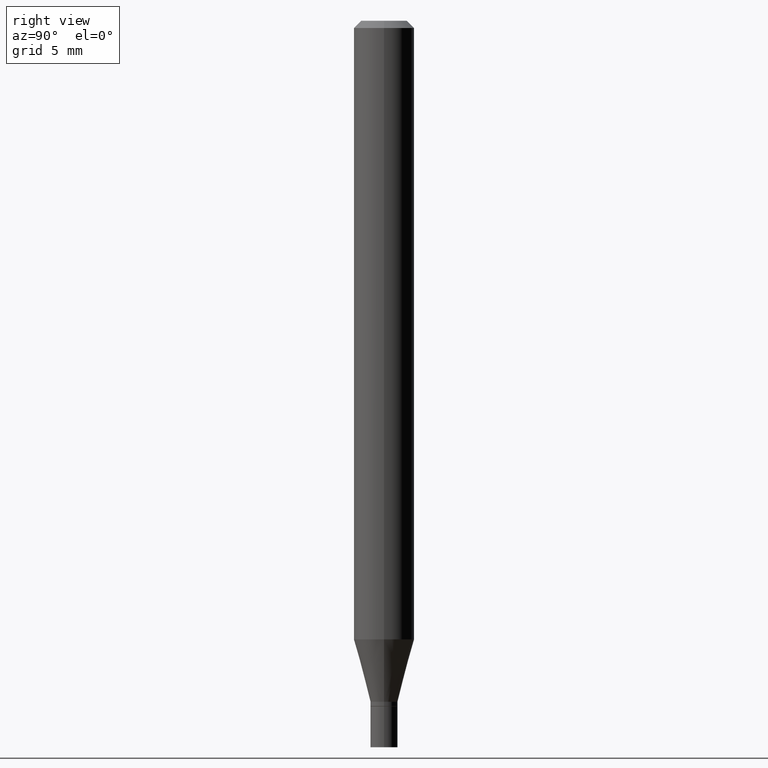
[diagram: clean part render]
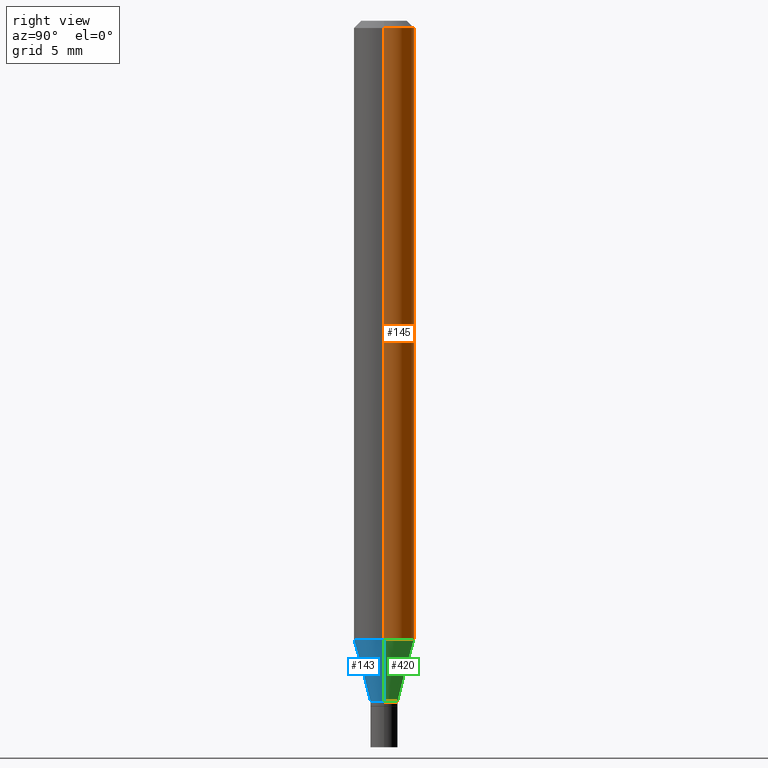
[diagram: same view with three faces highlighted in distinct colors, each labeled with its STEP entity id]
A machine part, right view with three faces highlighted in distinct colors.
Their STEP definitions:

[orange] entity #145 — the highlighted cylindrical surface (edge-blend (fillet) strip) has radius 1.5875 mm, axis along (-0, 0, 1).
#22 = DIRECTION ( 'NONE',  ( 1.000000000000000000, -6.982962677686262766E-15, 0.000000000000000000 ) ) ;
#32 = DIRECTION ( 'NONE',  ( -2.445468806185136877E-29, 3.491481338843145188E-15, 1.000000000000000000 ) ) ;
#33 = ORIENTED_EDGE ( 'NONE', *, *, #128, .F. ) ;
#53 = DIRECTION ( 'NONE',  ( -2.445468806185136597E-29, 3.491481338843145583E-15, 1.000000000000000000 ) ) ;
#55 = FACE_OUTER_BOUND ( 'NONE', #213, .T. ) ;
#59 = CIRCLE ( 'NONE', #74, 0.06250000000000000000 ) ;
#74 = AXIS2_PLACEMENT_3D ( 'NONE', #384, #53, #22 ) ;
#76 = VERTEX_POINT ( 'NONE', #443 ) ;
#77 = ORIENTED_EDGE ( 'NONE', *, *, #331, .T. ) ;
#99 = ORIENTED_EDGE ( 'NONE', *, *, #215, .F. ) ;
#108 = VERTEX_POINT ( 'NONE', #276 ) ;
#114 = CARTESIAN_POINT ( 'NONE',  ( 0.06250000000000000000, -4.895909621385532005E-15, -1.277244247138873634 ) ) ;
#122 = DIRECTION ( 'NONE',  ( -2.445468806185136597E-29, 3.491481338843145583E-15, 1.000000000000000000 ) ) ;
#128 = EDGE_CURVE ( 'NONE', #108, #76, #250, .T. ) ;
#145 = ADVANCED_FACE ( 'NONE', ( #55 ), #453, .T. ) ;
#149 = VECTOR ( 'NONE', #32, 39.37007874015748143 ) ;
#151 = VERTEX_POINT ( 'NONE', #446 ) ;
#158 = VECTOR ( 'NONE', #202, 39.37007874015748143 ) ;
#183 = EDGE_CURVE ( 'NONE', #440, #151, #59, .T. ) ;
#199 = DIRECTION ( 'NONE',  ( 1.000000000000000000, -6.982962677686266711E-15, 0.000000000000000000 ) ) ;
#202 = DIRECTION ( 'NONE',  ( -2.445468806185136877E-29, 3.491481338843145188E-15, 1.000000000000000000 ) ) ;
#213 = EDGE_LOOP ( 'NONE', ( #321, #77, #33, #99 ) ) ;
#215 = EDGE_CURVE ( 'NONE', #440, #108, #330, .T. ) ;
#236 = DIRECTION ( 'NONE',  ( 1.000000000000000000, -6.982962677686266711E-15, 4.876176775795935793E-29 ) ) ;
#250 = CIRCLE ( 'NONE', #318, 0.06250000000000000000 ) ;
#276 = CARTESIAN_POINT ( 'NONE',  ( 0.06250000000000000000, -4.888073874380388472E-16, -0.01499999999999999944 ) ) ;
#310 = DIRECTION ( 'NONE',  ( -2.445468806185136597E-29, 3.491481338843145583E-15, 1.000000000000000000 ) ) ;
#318 = AXIS2_PLACEMENT_3D ( 'NONE', #419, #122, #199 ) ;
#321 = ORIENTED_EDGE ( 'NONE', *, *, #183, .T. ) ;
#330 = LINE ( 'NONE', #426, #158 ) ;
#331 = EDGE_CURVE ( 'NONE', #151, #76, #364, .T. ) ;
#334 = AXIS2_PLACEMENT_3D ( 'NONE', #352, #310, #236 ) ;
#352 = CARTESIAN_POINT ( 'NONE',  ( 0.000000000000000000, 0.000000000000000000, 0.000000000000000000 ) ) ;
#364 = LINE ( 'NONE', #391, #149 ) ;
#384 = CARTESIAN_POINT ( 'NONE',  ( 3.123460964257534823E-29, -4.459474454030139547E-15, -1.277244247138873634 ) ) ;
#391 = CARTESIAN_POINT ( 'NONE',  ( -0.06250000000000000000, 4.440892098500626162E-16, -3.074334431409316114E-30 ) ) ;
#419 = CARTESIAN_POINT ( 'NONE',  ( 3.668203209277705088E-31, -5.237222008264718399E-17, -0.01499999999999999944 ) ) ;
#426 = CARTESIAN_POINT ( 'NONE',  ( 0.06250000000000000000, -4.364351673553916694E-16, 3.047610484872459871E-30 ) ) ;
#440 = VERTEX_POINT ( 'NONE', #114 ) ;
#443 = CARTESIAN_POINT ( 'NONE',  ( -0.06250000000000000000, -1.811834127206330894E-15, -0.01499999999999999944 ) ) ;
#446 = CARTESIAN_POINT ( 'NONE',  ( -0.06250000000000000000, -4.015385244180077719E-15, -1.277244247138873634 ) ) ;
#453 = CYLINDRICAL_SURFACE ( 'NONE', #334, 0.06250000000000000000 ) ;

[blue] entity #143 — the highlighted conical surface has half-angle 15 deg.
#17 = DIRECTION ( 'NONE',  ( 1.000000000000000000, -6.982962677686280910E-15, 0.000000000000000000 ) ) ;
#20 = CIRCLE ( 'NONE', #260, 0.02799999999999993119 ) ;
#47 = EDGE_CURVE ( 'NONE', #299, #440, #417, .T. ) ;
#64 = CARTESIAN_POINT ( 'NONE',  ( 3.438329141496302499E-29, -4.909022762413463673E-15, -1.406000000000000139 ) ) ;
#112 = VECTOR ( 'NONE', #168, 39.37007874015748143 ) ;
#114 = CARTESIAN_POINT ( 'NONE',  ( 0.06250000000000000000, -4.895909621385532005E-15, -1.277244247138873634 ) ) ;
#120 = AXIS2_PLACEMENT_3D ( 'NONE', #312, #451, #17 ) ;
#125 = CONICAL_SURFACE ( 'NONE', #120, 0.02799999999999993119, 0.2617993877991491858 ) ;
#127 = LINE ( 'NONE', #280, #112 ) ;
#132 = CARTESIAN_POINT ( 'NONE',  ( 0.02799999999999993119, -5.104545717388679172E-15, -1.406000000000000139 ) ) ;
#143 = ADVANCED_FACE ( 'NONE', ( #348 ), #125, .T. ) ;
#151 = VERTEX_POINT ( 'NONE', #446 ) ;
#157 = CARTESIAN_POINT ( 'NONE',  ( 0.02799999999999993119, -5.104545717388679172E-15, -1.406000000000000139 ) ) ;
#168 = DIRECTION ( 'NONE',  ( -0.2588190451025205174, 5.211531920934544731E-15, 0.9659258262890684232 ) ) ;
#170 = CARTESIAN_POINT ( 'NONE',  ( -0.02799999999999993119, -4.362728020290356187E-15, -1.406000000000000139 ) ) ;
#191 = DIRECTION ( 'NONE',  ( 0.2588190451025205174, 1.565188264969628476E-15, 0.9659258262890684232 ) ) ;
#208 = EDGE_LOOP ( 'NONE', ( #329, #306, #370, #458 ) ) ;
#209 = EDGE_CURVE ( 'NONE', #151, #440, #390, .T. ) ;
#252 = DIRECTION ( 'NONE',  ( -2.445468806185136597E-29, 3.491481338843145583E-15, 1.000000000000000000 ) ) ;
#260 = AXIS2_PLACEMENT_3D ( 'NONE', #64, #252, #281 ) ;
#280 = CARTESIAN_POINT ( 'NONE',  ( -0.02799999999999993119, -4.710070796400636233E-15, -1.406000000000000139 ) ) ;
#281 = DIRECTION ( 'NONE',  ( 1.000000000000000000, -6.982962677686280910E-15, 0.000000000000000000 ) ) ;
#284 = DIRECTION ( 'NONE',  ( 1.000000000000000000, -6.982962677686262766E-15, 0.000000000000000000 ) ) ;
#298 = EDGE_CURVE ( 'NONE', #333, #299, #20, .T. ) ;
#299 = VERTEX_POINT ( 'NONE', #132 ) ;
#306 = ORIENTED_EDGE ( 'NONE', *, *, #298, .T. ) ;
#312 = CARTESIAN_POINT ( 'NONE',  ( 3.438329141496302499E-29, -4.909022762413463673E-15, -1.406000000000000139 ) ) ;
#329 = ORIENTED_EDGE ( 'NONE', *, *, #363, .F. ) ;
#333 = VERTEX_POINT ( 'NONE', #170 ) ;
#348 = FACE_OUTER_BOUND ( 'NONE', #208, .T. ) ;
#354 = DIRECTION ( 'NONE',  ( -2.445468806185136597E-29, 3.491481338843145583E-15, 1.000000000000000000 ) ) ;
#362 = VECTOR ( 'NONE', #191, 39.37007874015748143 ) ;
#363 = EDGE_CURVE ( 'NONE', #333, #151, #127, .T. ) ;
#368 = AXIS2_PLACEMENT_3D ( 'NONE', #421, #354, #284 ) ;
#370 = ORIENTED_EDGE ( 'NONE', *, *, #47, .T. ) ;
#390 = CIRCLE ( 'NONE', #368, 0.06250000000000000000 ) ;
#417 = LINE ( 'NONE', #157, #362 ) ;
#421 = CARTESIAN_POINT ( 'NONE',  ( 3.123460964257534823E-29, -4.459474454030139547E-15, -1.277244247138873634 ) ) ;
#440 = VERTEX_POINT ( 'NONE', #114 ) ;
#446 = CARTESIAN_POINT ( 'NONE',  ( -0.06250000000000000000, -4.015385244180077719E-15, -1.277244247138873634 ) ) ;
#451 = DIRECTION ( 'NONE',  ( -2.445468806185136597E-29, 3.491481338843145583E-15, 1.000000000000000000 ) ) ;
#458 = ORIENTED_EDGE ( 'NONE', *, *, #209, .F. ) ;

[green] entity #420 — the highlighted conical surface has half-angle 15 deg.
#1 = FACE_OUTER_BOUND ( 'NONE', #115, .T. ) ;
#18 = EDGE_CURVE ( 'NONE', #299, #333, #218, .T. ) ;
#19 = AXIS2_PLACEMENT_3D ( 'NONE', #268, #403, #73 ) ;
#22 = DIRECTION ( 'NONE',  ( 1.000000000000000000, -6.982962677686262766E-15, 0.000000000000000000 ) ) ;
#47 = EDGE_CURVE ( 'NONE', #299, #440, #417, .T. ) ;
#53 = DIRECTION ( 'NONE',  ( -2.445468806185136597E-29, 3.491481338843145583E-15, 1.000000000000000000 ) ) ;
#59 = CIRCLE ( 'NONE', #74, 0.06250000000000000000 ) ;
#73 = DIRECTION ( 'NONE',  ( 1.000000000000000000, -6.982962677686280910E-15, 0.000000000000000000 ) ) ;
#74 = AXIS2_PLACEMENT_3D ( 'NONE', #384, #53, #22 ) ;
#112 = VECTOR ( 'NONE', #168, 39.37007874015748143 ) ;
#114 = CARTESIAN_POINT ( 'NONE',  ( 0.06250000000000000000, -4.895909621385532005E-15, -1.277244247138873634 ) ) ;
#115 = EDGE_LOOP ( 'NONE', ( #262, #241, #179, #245 ) ) ;
#127 = LINE ( 'NONE', #280, #112 ) ;
#132 = CARTESIAN_POINT ( 'NONE',  ( 0.02799999999999993119, -5.104545717388679172E-15, -1.406000000000000139 ) ) ;
#144 = CARTESIAN_POINT ( 'NONE',  ( 3.438329141496302499E-29, -4.909022762413463673E-15, -1.406000000000000139 ) ) ;
#151 = VERTEX_POINT ( 'NONE', #446 ) ;
#157 = CARTESIAN_POINT ( 'NONE',  ( 0.02799999999999993119, -5.104545717388679172E-15, -1.406000000000000139 ) ) ;
#168 = DIRECTION ( 'NONE',  ( -0.2588190451025205174, 5.211531920934544731E-15, 0.9659258262890684232 ) ) ;
#170 = CARTESIAN_POINT ( 'NONE',  ( -0.02799999999999993119, -4.362728020290356187E-15, -1.406000000000000139 ) ) ;
#178 = DIRECTION ( 'NONE',  ( -2.445468806185136597E-29, 3.491481338843145583E-15, 1.000000000000000000 ) ) ;
#179 = ORIENTED_EDGE ( 'NONE', *, *, #183, .F. ) ;
#183 = EDGE_CURVE ( 'NONE', #440, #151, #59, .T. ) ;
#191 = DIRECTION ( 'NONE',  ( 0.2588190451025205174, 1.565188264969628476E-15, 0.9659258262890684232 ) ) ;
#210 = AXIS2_PLACEMENT_3D ( 'NONE', #144, #178, #397 ) ;
#218 = CIRCLE ( 'NONE', #19, 0.02799999999999993119 ) ;
#241 = ORIENTED_EDGE ( 'NONE', *, *, #363, .T. ) ;
#245 = ORIENTED_EDGE ( 'NONE', *, *, #47, .F. ) ;
#251 = CONICAL_SURFACE ( 'NONE', #210, 0.02799999999999993119, 0.2617993877991491858 ) ;
#262 = ORIENTED_EDGE ( 'NONE', *, *, #18, .T. ) ;
#268 = CARTESIAN_POINT ( 'NONE',  ( 3.438329141496302499E-29, -4.909022762413463673E-15, -1.406000000000000139 ) ) ;
#280 = CARTESIAN_POINT ( 'NONE',  ( -0.02799999999999993119, -4.710070796400636233E-15, -1.406000000000000139 ) ) ;
#299 = VERTEX_POINT ( 'NONE', #132 ) ;
#333 = VERTEX_POINT ( 'NONE', #170 ) ;
#362 = VECTOR ( 'NONE', #191, 39.37007874015748143 ) ;
#363 = EDGE_CURVE ( 'NONE', #333, #151, #127, .T. ) ;
#384 = CARTESIAN_POINT ( 'NONE',  ( 3.123460964257534823E-29, -4.459474454030139547E-15, -1.277244247138873634 ) ) ;
#397 = DIRECTION ( 'NONE',  ( 1.000000000000000000, -6.982962677686280910E-15, 0.000000000000000000 ) ) ;
#403 = DIRECTION ( 'NONE',  ( -2.445468806185136597E-29, 3.491481338843145583E-15, 1.000000000000000000 ) ) ;
#417 = LINE ( 'NONE', #157, #362 ) ;
#420 = ADVANCED_FACE ( 'NONE', ( #1 ), #251, .T. ) ;
#440 = VERTEX_POINT ( 'NONE', #114 ) ;
#446 = CARTESIAN_POINT ( 'NONE',  ( -0.06250000000000000000, -4.015385244180077719E-15, -1.277244247138873634 ) ) ;